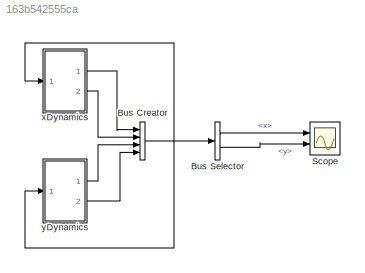
MODEL slx_163b542555ca
KIND model
CONFIG AbsTol = auto
CONFIG EnableMultiTasking = on
CONFIG FixedStep = .1
CONFIG MaxStep = auto
CONFIG MinStep = auto
CONFIG PreLoadFcn = g = 9.83;          % acceleration of gravity (m/sec^2)\nL = 67;            % pendulum length (m)\ninitial_x = L/100; % initial x coordinate (m)\ninitial_y = 0;     % initial y coordinate (m)\ninitial_xdot = 0;  % initial x velocity (m/sec)\ninitial_ydot = 0;  % initial y velocity (m/sec)\nOmega=2*pi/86400;  % Earth's angular velocity of rotation about its axis (rad/sec)\nlambda=49/180*pi;  % latitude in ...<+5ch>
CONFIG RelTol = 1e-5
CONFIG SampleTimeConstraint = Unconstrained
CONFIG Solver = ode23t
CONFIG SolverName = ode23t
CONFIG StartTime = 0.0
CONFIG StopTime = 3600
BLOCK [BusCreator] Bus Creator
  DisplayOption = bar
  InheritFromInputs = on
  Inputs = 4
  Ports = [4, 1]
BLOCK [BusSelector] Bus Selector
  OutputAsBus = off
  OutputSignals = x,y
  Ports = [1, 2]
BLOCK [Scope] Scope
  Floating = off
  NumInputPorts = 2
  Ports = [2]
  ScopeSpecificationString = Simulink.scopes.TimeScopeBlockCfg('CurrentConfiguration', extmgr.ConfigurationSet(extmgr.Configuration('Core','General UI',true),extmgr.Configuration('Core','Source UI',true),extmgr.Configuration('Sources','WiredSimulink',true,'DataLoggingVariableName','output','DataLoggingSaveFormat','StructureWithTime','DataLoggingDecimation','1','DataLoggingDecimateData',true),extmgr.Configuration('Visuals','Ti...<+2731ch>
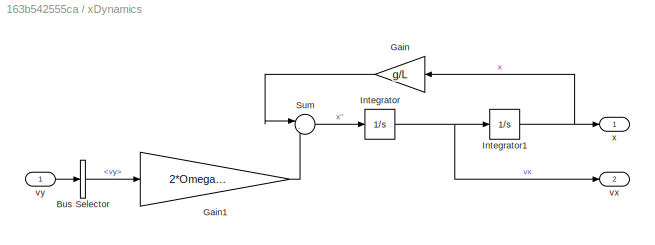
BLOCK [SubSystem] xDynamics
  Ports = [1, 2]
  RequestExecContextInheritance = off
BLOCK [BusSelector] xDynamics/Bus Selector
  OutputAsBus = off
  OutputSignals = vy
  Ports = [1, 1]
BLOCK [Gain] xDynamics/Gain
  Gain = g/L
  OutDataTypeStr = Inherit: Inherit via internal rule
  ParamDataTypeStr = Inherit: Inherit via internal rule
  SaturateOnIntegerOverflow = off
BLOCK [Gain] xDynamics/Gain1
  Gain = 2*Omega*sin(lambda)
  OutDataTypeStr = Inherit: Inherit via internal rule
  ParamDataTypeStr = Inherit: Inherit via internal rule
  SaturateOnIntegerOverflow = off
BLOCK [Integrator] xDynamics/Integrator
  InitialCondition = initial_xdot
  Ports = [1, 1]
BLOCK [Integrator] xDynamics/Integrator1
  InitialCondition = initial_x
  Ports = [1, 1]
BLOCK [Sum] xDynamics/Sum
  IconShape = round
  InputSameDT = off
  Inputs = |-+
  OutDataTypeStr = Inherit: Inherit via internal rule
  Ports = [2, 1]
  SaturateOnIntegerOverflow = off
BLOCK [Outport] xDynamics/vx
  IconDisplay = Port number
  Port = 2
BLOCK [Inport] xDynamics/vy
  IconDisplay = Port number
BLOCK [Outport] xDynamics/x
  IconDisplay = Port number
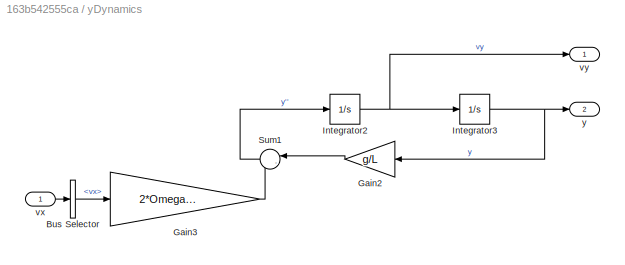
BLOCK [SubSystem] yDynamics
  Ports = [1, 2]
  RequestExecContextInheritance = off
BLOCK [BusSelector] yDynamics/Bus Selector
  OutputAsBus = off
  OutputSignals = vx
  Ports = [1, 1]
BLOCK [Gain] yDynamics/Gain2
  Gain = g/L
  OutDataTypeStr = Inherit: Inherit via internal rule
  ParamDataTypeStr = Inherit: Inherit via internal rule
  SaturateOnIntegerOverflow = off
BLOCK [Gain] yDynamics/Gain3
  Gain = 2*Omega*sin(lambda)
  OutDataTypeStr = Inherit: Inherit via internal rule
  ParamDataTypeStr = Inherit: Inherit via internal rule
  SaturateOnIntegerOverflow = off
BLOCK [Integrator] yDynamics/Integrator2
  InitialCondition = initial_ydot
  Ports = [1, 1]
BLOCK [Integrator] yDynamics/Integrator3
  InitialCondition = initial_y
  Ports = [1, 1]
BLOCK [Sum] yDynamics/Sum1
  IconShape = round
  InputSameDT = off
  Inputs = |--
  OutDataTypeStr = Inherit: Inherit via internal rule
  Ports = [2, 1]
  SaturateOnIntegerOverflow = off
BLOCK [Inport] yDynamics/vx
  IconDisplay = Port number
BLOCK [Outport] yDynamics/vy
  IconDisplay = Port number
BLOCK [Outport] yDynamics/y
  IconDisplay = Port number
  Port = 2
NET Bus Creator:1 -> Bus Selector:1, xDynamics:1, yDynamics:1
LINE Bus Selector:1 -> Scope:1
LINE Bus Selector:2 -> Scope:2
LINE xDynamics/Bus Selector:1 -> xDynamics/Gain1:1
LINE xDynamics/Gain1:1 -> xDynamics/Sum:2
LINE xDynamics/Gain:1 -> xDynamics/Sum:1
NET xDynamics/Integrator1:1 -> xDynamics/Gain:1, xDynamics/x:1
NET xDynamics/Integrator:1 -> xDynamics/Integrator1:1, xDynamics/vx:1
LINE xDynamics/Sum:1 -> xDynamics/Integrator:1
LINE xDynamics/vy:1 -> xDynamics/Bus Selector:1
LINE xDynamics:1 -> Bus Creator:1
LINE xDynamics:2 -> Bus Creator:2
LINE yDynamics/Bus Selector:1 -> yDynamics/Gain3:1
LINE yDynamics/Gain2:1 -> yDynamics/Sum1:1
LINE yDynamics/Gain3:1 -> yDynamics/Sum1:2
NET yDynamics/Integrator2:1 -> yDynamics/Integrator3:1, yDynamics/vy:1
NET yDynamics/Integrator3:1 -> yDynamics/Gain2:1, yDynamics/y:1
LINE yDynamics/Sum1:1 -> yDynamics/Integrator2:1
LINE yDynamics/vx:1 -> yDynamics/Bus Selector:1
LINE yDynamics:1 -> Bus Creator:3
LINE yDynamics:2 -> Bus Creator:4
note: NET lines group one-source signal fan-out (src -> all destinations, sorted); 1:1 wires keep LINE
